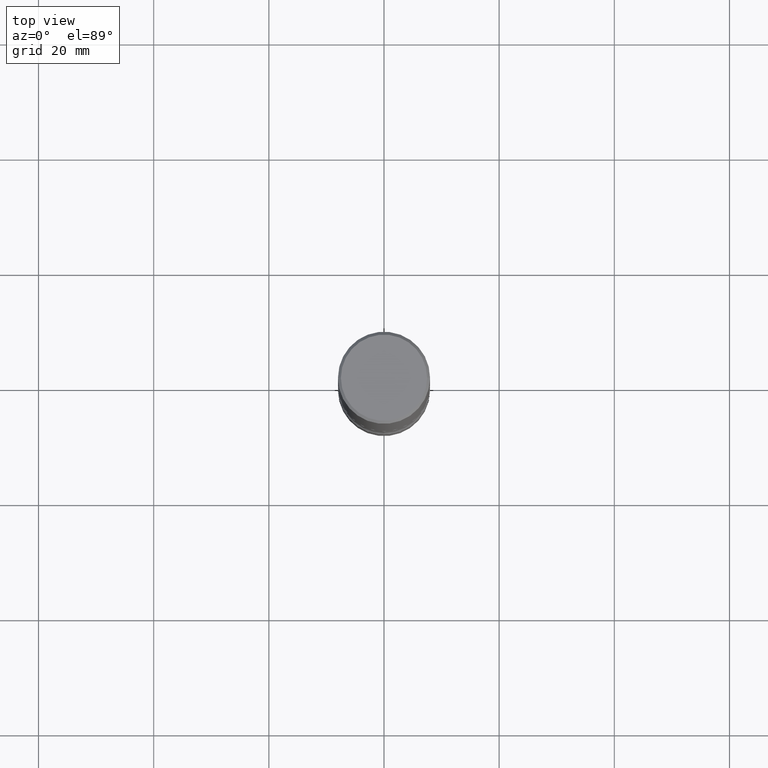
[diagram: clean part render]
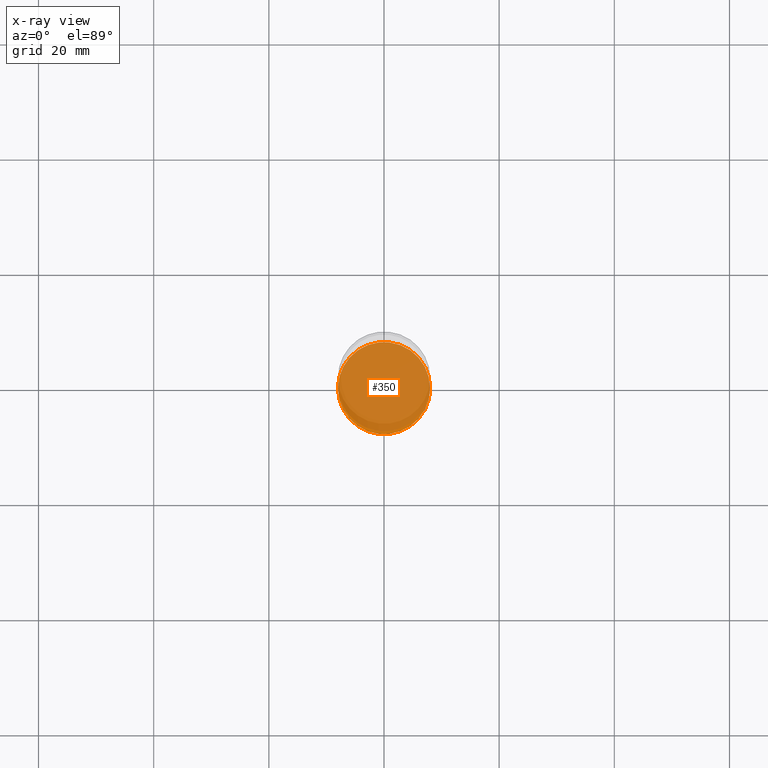
[diagram: x-ray — body ghosted, one internal face saturated and labeled with its STEP entity id]
A machine part, top view, then the same camera in x-ray: the body is ghosted and one INTERNAL B-rep face — a face not visible from any outside direction — is saturated and labeled: STEP entity #350.
In plain terms, the highlighted planar face has unit normal (0, -0, -1).
Its self-contained STEP definition (entity closure, byte-faithful):
#31 = CARTESIAN_POINT ( 'NONE',  ( 1.010932349788873450E-28, -1.443343470664368071E-14, -4.133899999999999686 ) ) ;
#48 = VERTEX_POINT ( 'NONE', #399 ) ;
#56 = DIRECTION ( 'NONE',  ( 1.000000000000000000, -6.982962677686265922E-15, 0.000000000000000000 ) ) ;
#99 = PLANE ( 'NONE',  #428 ) ;
#118 = EDGE_CURVE ( 'NONE', #265, #48, #385, .T. ) ;
#146 = DIRECTION ( 'NONE',  ( -1.000000000000000000, 6.982962677686265922E-15, -4.876176775795935793E-29 ) ) ;
#168 = EDGE_LOOP ( 'NONE', ( #440, #478 ) ) ;
#264 = CARTESIAN_POINT ( 'NONE',  ( 1.010932349788873450E-28, -1.443343470664368071E-14, -4.133899999999999686 ) ) ;
#265 = VERTEX_POINT ( 'NONE', #537 ) ;
#288 = DIRECTION ( 'NONE',  ( -2.445468806185136597E-29, 3.491481338843145583E-15, 1.000000000000000000 ) ) ;
#340 = DIRECTION ( 'NONE',  ( -2.445468806185136597E-29, 3.491481338843145583E-15, 1.000000000000000000 ) ) ;
#350 = ADVANCED_FACE ( 'NONE', ( #543 ), #99, .F. ) ;
#377 = CIRCLE ( 'NONE', #540, 0.3149500000000001743 ) ;
#385 = CIRCLE ( 'NONE', #465, 0.3149500000000001743 ) ;
#399 = CARTESIAN_POINT ( 'NONE',  ( -0.3149500000000001743, -1.339839568159870722E-14, -4.133899999999999686 ) ) ;
#428 = AXIS2_PLACEMENT_3D ( 'NONE', #264, #442, #146 ) ;
#440 = ORIENTED_EDGE ( 'NONE', *, *, #118, .T. ) ;
#442 = DIRECTION ( 'NONE',  ( 2.438088387897960049E-29, -3.491481338843145188E-15, -1.000000000000000000 ) ) ;
#451 = EDGE_CURVE ( 'NONE', #48, #265, #377, .T. ) ;
#464 = DIRECTION ( 'NONE',  ( 1.000000000000000000, -6.982962677686265922E-15, 0.000000000000000000 ) ) ;
#465 = AXIS2_PLACEMENT_3D ( 'NONE', #527, #340, #56 ) ;
#478 = ORIENTED_EDGE ( 'NONE', *, *, #451, .T. ) ;
#527 = CARTESIAN_POINT ( 'NONE',  ( 1.010932349788873450E-28, -1.443343470664368071E-14, -4.133899999999999686 ) ) ;
#537 = CARTESIAN_POINT ( 'NONE',  ( 0.3149500000000001743, -1.663271880198097216E-14, -4.133899999999999686 ) ) ;
#540 = AXIS2_PLACEMENT_3D ( 'NONE', #31, #288, #464 ) ;
#543 = FACE_OUTER_BOUND ( 'NONE', #168, .T. ) ;